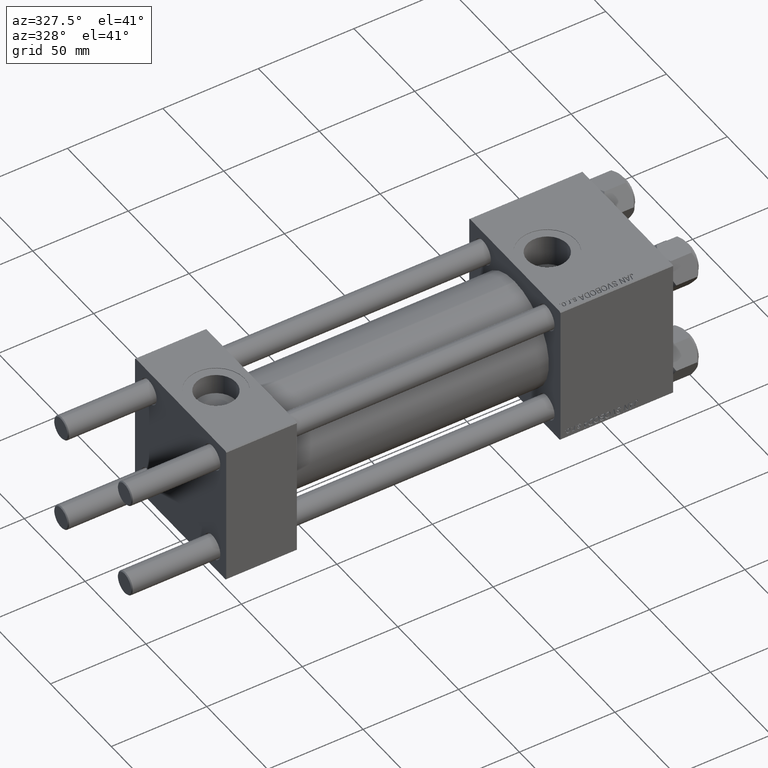
[diagram: clean part render]
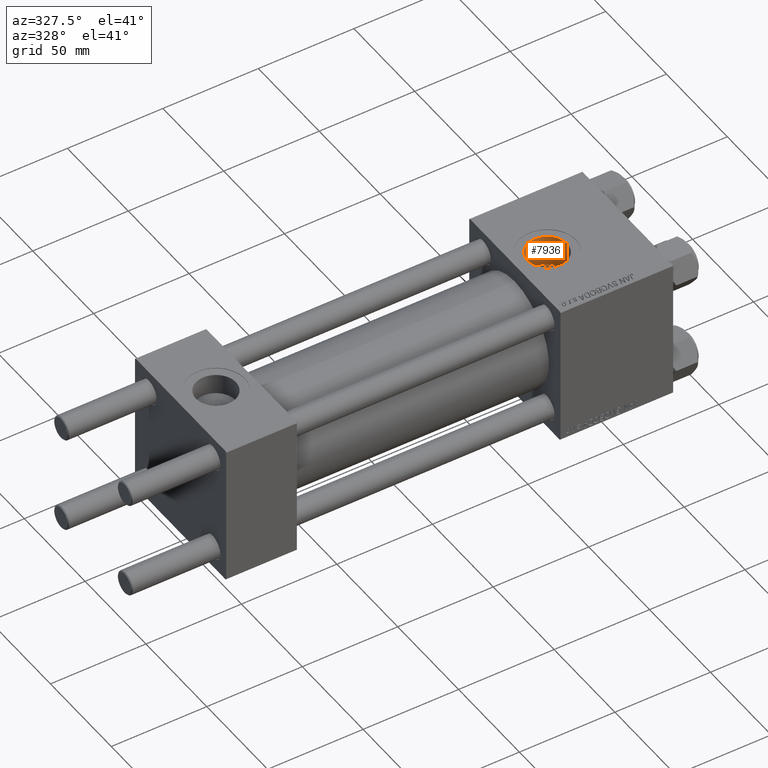
[diagram: same view with one face highlighted and labeled with its STEP entity id]
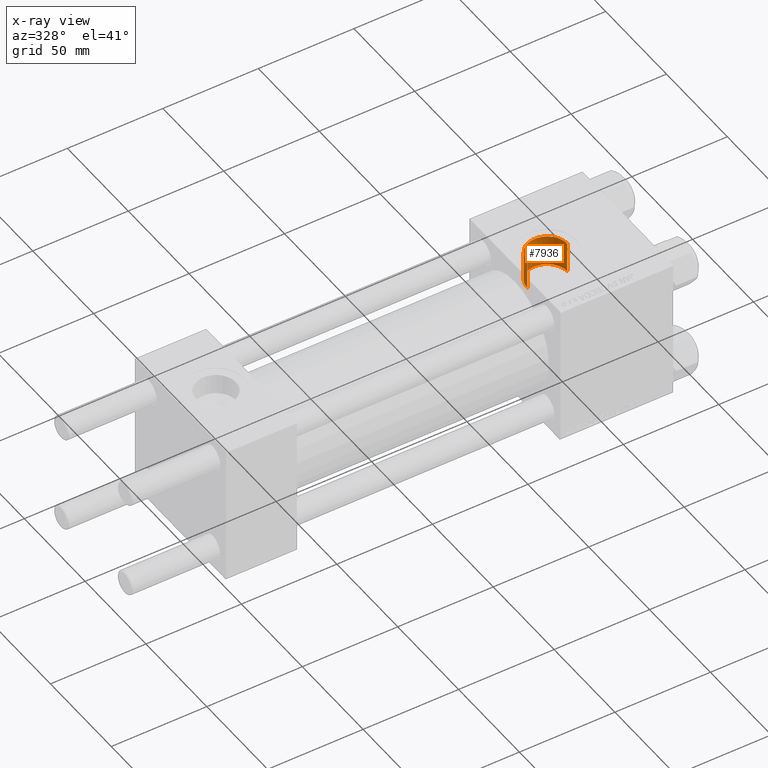
[diagram: x-ray of the same camera — body ghosted, the highlighted face saturated]
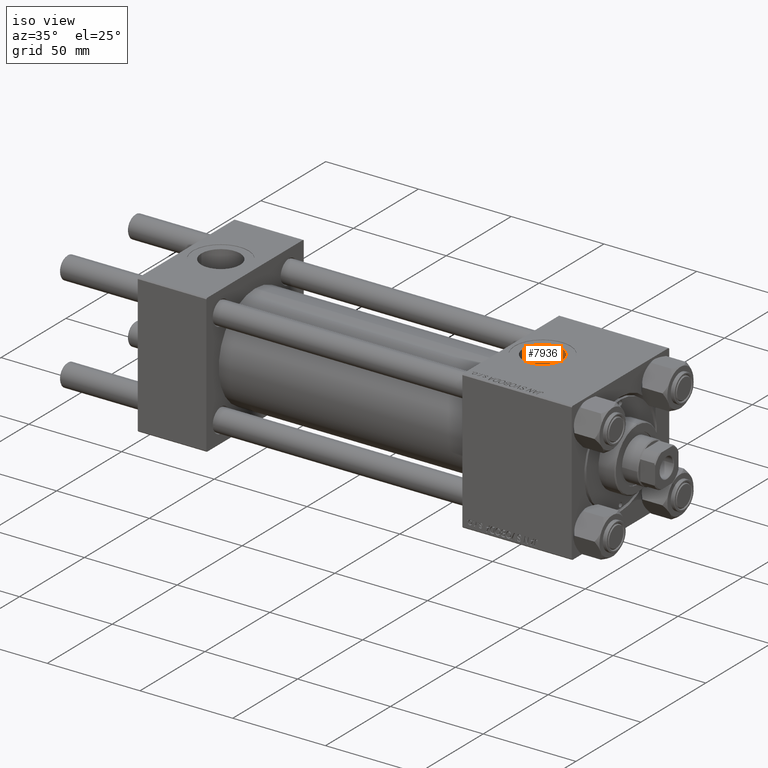
[diagram: same view with one face highlighted and labeled with its STEP entity id]
A machine part, auxiliary view. The second image highlights one B-rep face of the part: STEP entity #7936.
The next image is the same camera in x-ray: the body ghosted, the highlighted face saturated — about 0% of this face is hidden behind the body in this view.
A second angle (iso view) of the same face is appended — the face is thin or edge-on in the first view.
In plain terms, the highlighted cylindrical surface (edge-blend (fillet) strip) has radius 10.48 mm, axis along (0, 0, -1).
Its self-contained STEP definition (entity closure, byte-faithful):
#1270 = CYLINDRICAL_SURFACE ( 'NONE', #11616, 10.47999999999998977 ) ;
#1291 = CARTESIAN_POINT ( 'NONE',  ( 192.0000000000000000, -6.938893903907226011E-15, 21.09999999999998010 ) ) ;
#3234 = ORIENTED_EDGE ( 'NONE', *, *, #28975, .F. ) ;
#5160 = EDGE_CURVE ( 'NONE', #28141, #9732, #39162, .T. ) ;
#7488 = LINE ( 'NONE', #34510, #41191 ) ;
#7936 = ADVANCED_FACE ( 'NONE', ( #12404 ), #1270, .F. ) ;
#8274 = CARTESIAN_POINT ( 'NONE',  ( 192.0000000000000000, -6.938893903907226011E-15, 37.29999999999998295 ) ) ;
#9611 = CARTESIAN_POINT ( 'NONE',  ( 202.4799999999999898, -5.655464058400802100E-15, 21.09999999999998010 ) ) ;
#9732 = VERTEX_POINT ( 'NONE', #32391 ) ;
#11375 = AXIS2_PLACEMENT_3D ( 'NONE', #8274, #35809, #23713 ) ;
#11616 = AXIS2_PLACEMENT_3D ( 'NONE', #12151, #15938, #16696 ) ;
#12151 = CARTESIAN_POINT ( 'NONE',  ( 192.0000000000000000, -6.938893903907226011E-15, 60.29999999999998295 ) ) ;
#12330 = VERTEX_POINT ( 'NONE', #35502 ) ;
#12404 = FACE_OUTER_BOUND ( 'NONE', #28774, .T. ) ;
#15340 = AXIS2_PLACEMENT_3D ( 'NONE', #1291, #21507, #44204 ) ;
#15938 = DIRECTION ( 'NONE',  ( 0.000000000000000000, 0.000000000000000000, -1.000000000000000000 ) ) ;
#16696 = DIRECTION ( 'NONE',  ( -1.000000000000000000, 0.000000000000000000, 0.000000000000000000 ) ) ;
#20177 = ORIENTED_EDGE ( 'NONE', *, *, #5160, .T. ) ;
#21507 = DIRECTION ( 'NONE',  ( 0.000000000000000000, 0.000000000000000000, 1.000000000000000000 ) ) ;
#23713 = DIRECTION ( 'NONE',  ( 1.000000000000000000, 0.000000000000000000, 0.000000000000000000 ) ) ;
#25786 = DIRECTION ( 'NONE',  ( 0.000000000000000000, 0.000000000000000000, -1.000000000000000000 ) ) ;
#28141 = VERTEX_POINT ( 'NONE', #47340 ) ;
#28774 = EDGE_LOOP ( 'NONE', ( #34627, #3234, #20177, #36953 ) ) ;
#28975 = EDGE_CURVE ( 'NONE', #28141, #12330, #40395, .T. ) ;
#32329 = DIRECTION ( 'NONE',  ( 0.000000000000000000, 0.000000000000000000, -1.000000000000000000 ) ) ;
#32391 = CARTESIAN_POINT ( 'NONE',  ( 181.5200000000000102, -6.938893903907226011E-15, 21.09999999999998010 ) ) ;
#34073 = EDGE_CURVE ( 'NONE', #48495, #9732, #48364, .T. ) ;
#34286 = EDGE_CURVE ( 'NONE', #12330, #48495, #7488, .T. ) ;
#34510 = CARTESIAN_POINT ( 'NONE',  ( 202.4799999999999898, -5.655464058400801311E-15, 60.29999999999998295 ) ) ;
#34627 = ORIENTED_EDGE ( 'NONE', *, *, #34286, .F. ) ;
#35502 = CARTESIAN_POINT ( 'NONE',  ( 202.4799999999999898, -5.655464058400802100E-15, 37.29999999999998295 ) ) ;
#35809 = DIRECTION ( 'NONE',  ( -0.000000000000000000, -0.000000000000000000, -1.000000000000000000 ) ) ;
#36656 = VECTOR ( 'NONE', #32329, 1000.000000000000000 ) ;
#36953 = ORIENTED_EDGE ( 'NONE', *, *, #34073, .F. ) ;
#39162 = LINE ( 'NONE', #39414, #36656 ) ;
#39414 = CARTESIAN_POINT ( 'NONE',  ( 181.5200000000000102, -6.938893903907226011E-15, 60.29999999999998295 ) ) ;
#40395 = CIRCLE ( 'NONE', #11375, 10.47999999999998977 ) ;
#41191 = VECTOR ( 'NONE', #25786, 1000.000000000000000 ) ;
#44204 = DIRECTION ( 'NONE',  ( 1.000000000000000000, 0.000000000000000000, 0.000000000000000000 ) ) ;
#47340 = CARTESIAN_POINT ( 'NONE',  ( 181.5200000000000102, -6.938893903907226011E-15, 37.29999999999998295 ) ) ;
#48364 = CIRCLE ( 'NONE', #15340, 10.47999999999998977 ) ;
#48495 = VERTEX_POINT ( 'NONE', #9611 ) ;